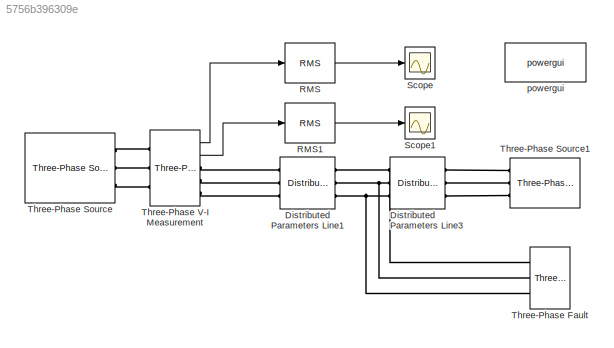
MODEL slx_5756b396309e
KIND model
CONFIG AbsTol = auto
CONFIG EnableMultiTasking = off
CONFIG FixedStep = auto
CONFIG MaxStep = auto
CONFIG MinStep = auto
CONFIG RelTol = 1e-3
CONFIG SampleTimeConstraint = Unconstrained
CONFIG Solver = daessc
CONFIG SolverName = daessc
CONFIG StartTime = 0.0
CONFIG StopFcn = % fault_type = 1005;\n% location = 50;\n% current = c(:,2:4);\n% current(:,4) = fault_type;\n% current(:,5) = location;\n% voltage = v(:,2:4);\n% logg = [voltage,current];\n% data = xlsread('sdata1');\n% data = [data;logg];\n% xlswrite('sdata1',data);
CONFIG StopTime = 1
BLOCK [Reference] Distributed Parameters Line1  REF=powerlib/Elements/Distributed Parameters Line
  Ports = [0, 0, 0, 0, 0, 3, 3]
  SourceBlock = powerlib/Elements/Distributed Parameters Line
  SourceProductBaseCode = PS
  SourceProductName = Simscape Power Systems
  SourceType = Distributed Parameters Line
BLOCK [Reference] Distributed Parameters Line3  REF=powerlib/Elements/Distributed Parameters Line
  Ports = [0, 0, 0, 0, 0, 3, 3]
  SourceBlock = powerlib/Elements/Distributed Parameters Line
  SourceProductBaseCode = PS
  SourceProductName = Simscape Power Systems
  SourceType = Distributed Parameters Line
BLOCK [Reference] RMS  REF=powerlib_meascontrol/Measurements/RMS
  Ports = [1, 1]
  SourceBlock = powerlib_meascontrol/Measurements/RMS
  SourceProductBaseCode = PS
  SourceProductName = Simscape Power Systems
  SourceType = RMS
BLOCK [Reference] RMS1  REF=powerlib_meascontrol/Measurements/RMS
  Ports = [1, 1]
  SourceBlock = powerlib_meascontrol/Measurements/RMS
  SourceProductBaseCode = PS
  SourceProductName = Simscape Power Systems
  SourceType = RMS
BLOCK [Scope] Scope
  Floating = off
  NumInputPorts = 1
  Ports = [1]
  ScopeSpecificationString = Simulink.scopes.TimeScopeBlockCfg('CurrentConfiguration', extmgr.ConfigurationSet(extmgr.Configuration('Core','General UI',true),extmgr.Configuration('Core','Source UI',true),extmgr.Configuration('Sources','WiredSimulink',true,'DataLoggingVariableName','v','DataLogging',true,'DataLoggingMaxPoints','100','DataLoggingSaveFormat','Array'),extmgr.Configuration('Visuals','Time Domain',true,'SerializedD...<+1654ch>
BLOCK [Scope] Scope1
  Floating = off
  NumInputPorts = 1
  Ports = [1]
  ScopeSpecificationString = Simulink.scopes.TimeScopeBlockCfg('CurrentConfiguration', extmgr.ConfigurationSet(extmgr.Configuration('Core','General UI',true),extmgr.Configuration('Core','Source UI',true),extmgr.Configuration('Sources','WiredSimulink',true,'DataLoggingVariableName','c','DataLogging',true,'DataLoggingMaxPoints','100','DataLoggingSaveFormat','Array'),extmgr.Configuration('Visuals','Time Domain',true,'SerializedD...<+1680ch>
BLOCK [Reference] Three-Phase Fault  REF=powerlib/Elements/Three-Phase Fault
  Ports = [0, 0, 0, 0, 0, 3]
  SourceBlock = powerlib/Elements/Three-Phase Fault
  SourceProductBaseCode = PS
  SourceProductName = Simscape Power Systems
  SourceType = Three-Phase Fault
BLOCK [Reference] Three-Phase Source  REF=powerlib/Electrical
Sources/Three-Phase Source
  Ports = [0, 0, 0, 0, 0, 0, 3]
  SourceBlock = powerlib/Electrical\nSources/Three-Phase Source
  SourceProductBaseCode = PS
  SourceProductName = Simscape Power Systems
  SourceType = Three-Phase Source
BLOCK [Reference] Three-Phase Source1  REF=powerlib/Electrical
Sources/Three-Phase Source
  Ports = [0, 0, 0, 0, 0, 0, 3]
  SourceBlock = powerlib/Electrical\nSources/Three-Phase Source
  SourceProductBaseCode = PS
  SourceProductName = Simscape Power Systems
  SourceType = Three-Phase Source
BLOCK [Reference] Three-Phase V-I Measurement  REF=powerlib/Measurements/Three-Phase
V-I Measurement
  Ports = [0, 2, 0, 0, 0, 3, 3]
  SourceBlock = powerlib/Measurements/Three-Phase\nV-I Measurement
  SourceProductBaseCode = PS
  SourceProductName = Simscape Power Systems
  SourceType = Three-Phase VI Measurement
BLOCK [Reference] powergui  REF=powerlib/powergui
  Ports = []
  Priority = 1
  SourceBlock = powerlib/powergui
  SourceProductBaseCode = PS
  SourceProductName = Simscape Power Systems
  SourceType = PSB option menu block
LINE RMS1:1 -> Scope1:1
LINE RMS:1 -> Scope:1
LINE Three-Phase V-I Measurement:1 -> RMS:1
LINE Three-Phase V-I Measurement:2 -> RMS1:1
PLINE Distributed Parameters Line1:LConn1 -- Three-Phase V-I Measurement:RConn1
PLINE Distributed Parameters Line1:LConn2 -- Three-Phase V-I Measurement:RConn2
PLINE Distributed Parameters Line1:LConn3 -- Three-Phase V-I Measurement:RConn3
PNET net1: Distributed Parameters Line1:RConn1 -- Distributed Parameters Line3:LConn1 -- Three-Phase Fault:LConn1
PNET net2: Distributed Parameters Line1:RConn2 -- Distributed Parameters Line3:LConn2 -- Three-Phase Fault:LConn2
PNET net3: Distributed Parameters Line1:RConn3 -- Distributed Parameters Line3:LConn3 -- Three-Phase Fault:LConn3
PLINE Distributed Parameters Line3:RConn1 -- Three-Phase Source1:RConn1
PLINE Distributed Parameters Line3:RConn2 -- Three-Phase Source1:RConn2
PLINE Distributed Parameters Line3:RConn3 -- Three-Phase Source1:RConn3
PLINE Three-Phase Source:RConn1 -- Three-Phase V-I Measurement:LConn1
PLINE Three-Phase Source:RConn2 -- Three-Phase V-I Measurement:LConn2
PLINE Three-Phase Source:RConn3 -- Three-Phase V-I Measurement:LConn3
note: PNET lines group multi-terminal physical nets as a canonical sorted terminal list (undirected conserving connections); 2-terminal nets keep the pairwise PLINE form
